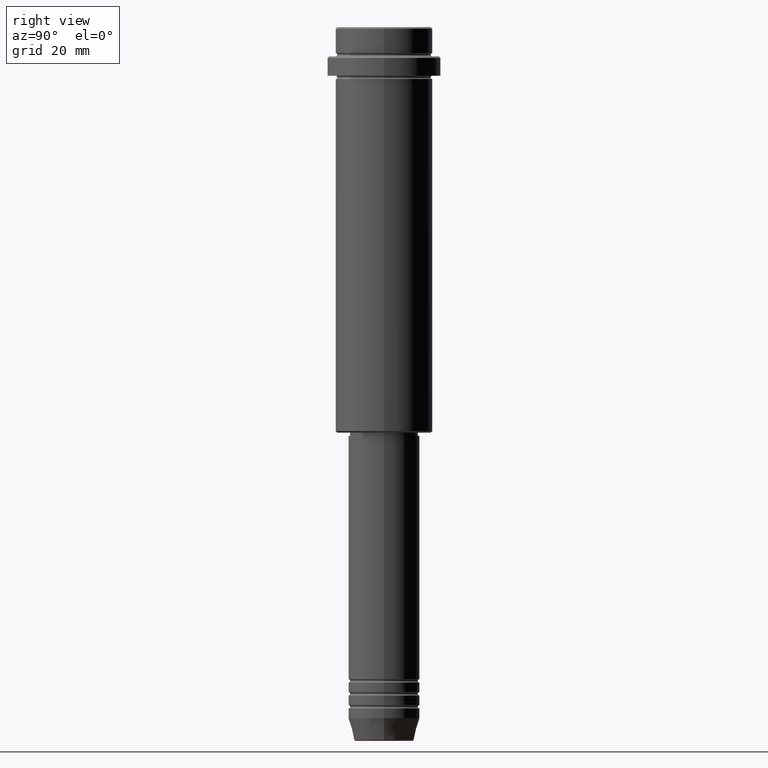
[diagram: clean part render]
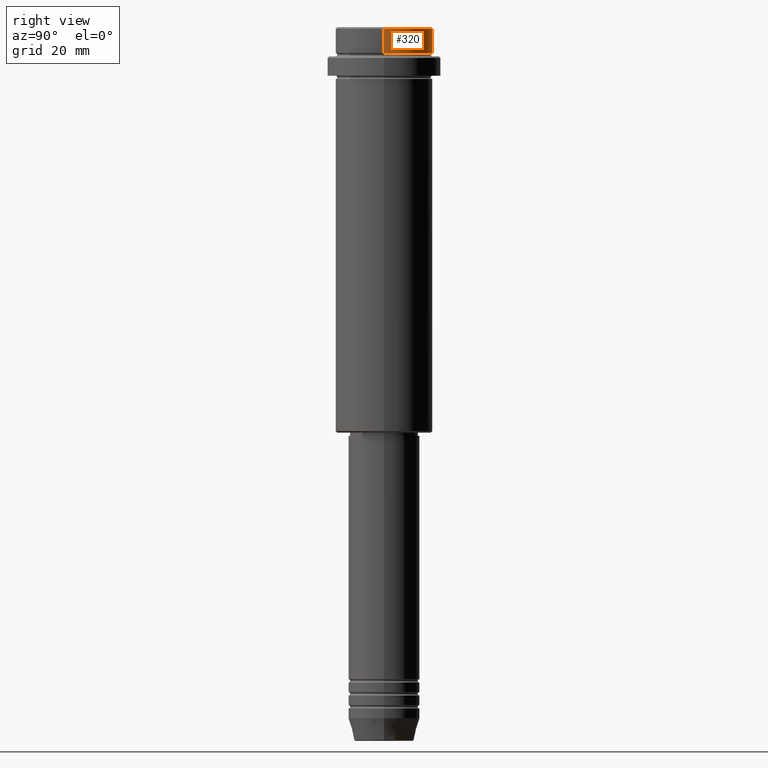
[diagram: same view with one face highlighted and labeled with its STEP entity id]
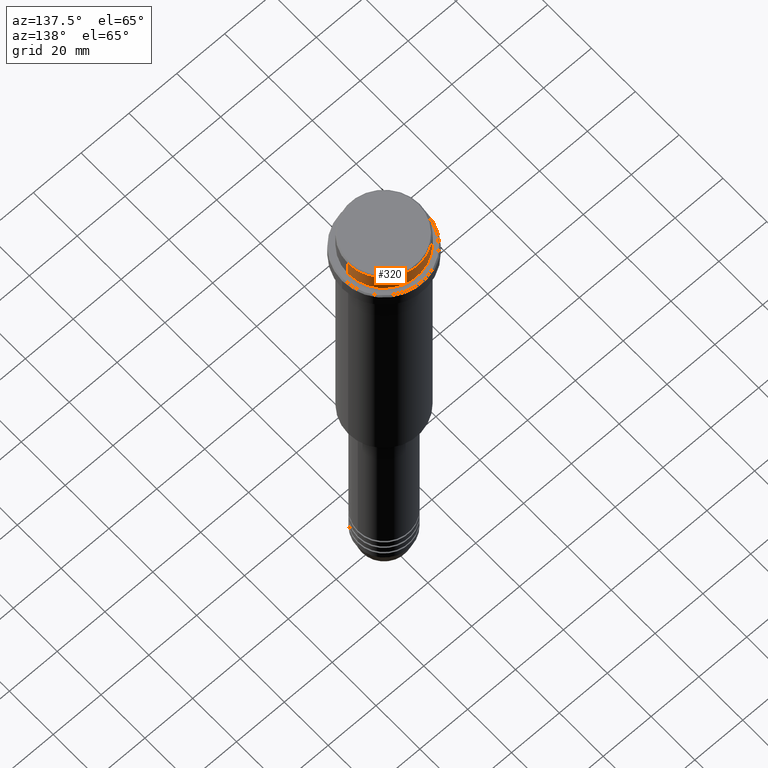
[diagram: same view with one face highlighted and labeled with its STEP entity id]
A machine part, right view. The second image highlights one B-rep face of the part: STEP entity #320.
A second angle (auxiliary view) of the same face is appended — the face is thin or edge-on in the first view.
In plain terms, the highlighted cylindrical surface (partial cylindrical patch) has radius 15 mm, axis along (-0, -0, 1).
Its self-contained STEP definition (entity closure, byte-faithful):
#67 = VERTEX_POINT ( 'NONE', #333 ) ;
#83 = DIRECTION ( 'NONE',  ( -0.000000000000000000, -0.000000000000000000, 1.000000000000000000 ) ) ;
#118 = CIRCLE ( 'NONE', #281, 15.00000000000000000 ) ;
#156 = CARTESIAN_POINT ( 'NONE',  ( 0.000000000000000000, 0.000000000000000000, 0.000000000000000000 ) ) ;
#167 = EDGE_CURVE ( 'NONE', #439, #1063, #118, .T. ) ;
#254 = EDGE_CURVE ( 'NONE', #67, #439, #908, .T. ) ;
#279 = VERTEX_POINT ( 'NONE', #1217 ) ;
#281 = AXIS2_PLACEMENT_3D ( 'NONE', #816, #899, #683 ) ;
#305 = ORIENTED_EDGE ( 'NONE', *, *, #1143, .T. ) ;
#320 = ADVANCED_FACE ( 'NONE', ( #489 ), #1153, .T. ) ;
#333 = CARTESIAN_POINT ( 'NONE',  ( -15.00000000000000000, 1.836970198721029589E-15, -7.999999999999998224 ) ) ;
#369 = EDGE_CURVE ( 'NONE', #279, #1063, #417, .T. ) ;
#392 = DIRECTION ( 'NONE',  ( 1.000000000000000000, 0.000000000000000000, 0.000000000000000000 ) ) ;
#417 = LINE ( 'NONE', #963, #572 ) ;
#439 = VERTEX_POINT ( 'NONE', #801 ) ;
#449 = DIRECTION ( 'NONE',  ( -0.000000000000000000, -0.000000000000000000, 1.000000000000000000 ) ) ;
#452 = ORIENTED_EDGE ( 'NONE', *, *, #369, .F. ) ;
#489 = FACE_OUTER_BOUND ( 'NONE', #658, .T. ) ;
#516 = ORIENTED_EDGE ( 'NONE', *, *, #254, .T. ) ;
#525 = CARTESIAN_POINT ( 'NONE',  ( 0.000000000000000000, 0.000000000000000000, -7.999999999999998224 ) ) ;
#572 = VECTOR ( 'NONE', #83, 1000.000000000000000 ) ;
#658 = EDGE_LOOP ( 'NONE', ( #305, #516, #1345, #452 ) ) ;
#672 = VECTOR ( 'NONE', #449, 1000.000000000000000 ) ;
#680 = CARTESIAN_POINT ( 'NONE',  ( -15.00000000000000000, 1.836970198721029589E-15, 0.000000000000000000 ) ) ;
#683 = DIRECTION ( 'NONE',  ( 1.000000000000000000, 0.000000000000000000, 0.000000000000000000 ) ) ;
#709 = AXIS2_PLACEMENT_3D ( 'NONE', #156, #1051, #392 ) ;
#801 = CARTESIAN_POINT ( 'NONE',  ( -15.00000000000000000, 1.836970198721029589E-15, -0.5000000000000108802 ) ) ;
#816 = CARTESIAN_POINT ( 'NONE',  ( 0.000000000000000000, 0.000000000000000000, -0.5000000000000108802 ) ) ;
#882 = CIRCLE ( 'NONE', #1341, 15.00000000000000000 ) ;
#899 = DIRECTION ( 'NONE',  ( 0.000000000000000000, 0.000000000000000000, -1.000000000000000000 ) ) ;
#908 = LINE ( 'NONE', #680, #672 ) ;
#947 = DIRECTION ( 'NONE',  ( -0.000000000000000000, -0.000000000000000000, 1.000000000000000000 ) ) ;
#963 = CARTESIAN_POINT ( 'NONE',  ( 15.00000000000000000, 0.000000000000000000, 0.000000000000000000 ) ) ;
#1051 = DIRECTION ( 'NONE',  ( -0.000000000000000000, -0.000000000000000000, 1.000000000000000000 ) ) ;
#1063 = VERTEX_POINT ( 'NONE', #1064 ) ;
#1064 = CARTESIAN_POINT ( 'NONE',  ( 15.00000000000000000, 0.000000000000000000, -0.5000000000000108802 ) ) ;
#1143 = EDGE_CURVE ( 'NONE', #279, #67, #882, .T. ) ;
#1153 = CYLINDRICAL_SURFACE ( 'NONE', #709, 15.00000000000000000 ) ;
#1217 = CARTESIAN_POINT ( 'NONE',  ( 15.00000000000000000, 0.000000000000000000, -7.999999999999998224 ) ) ;
#1341 = AXIS2_PLACEMENT_3D ( 'NONE', #525, #947, #1375 ) ;
#1345 = ORIENTED_EDGE ( 'NONE', *, *, #167, .T. ) ;
#1375 = DIRECTION ( 'NONE',  ( 1.000000000000000000, 0.000000000000000000, 0.000000000000000000 ) ) ;